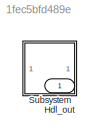
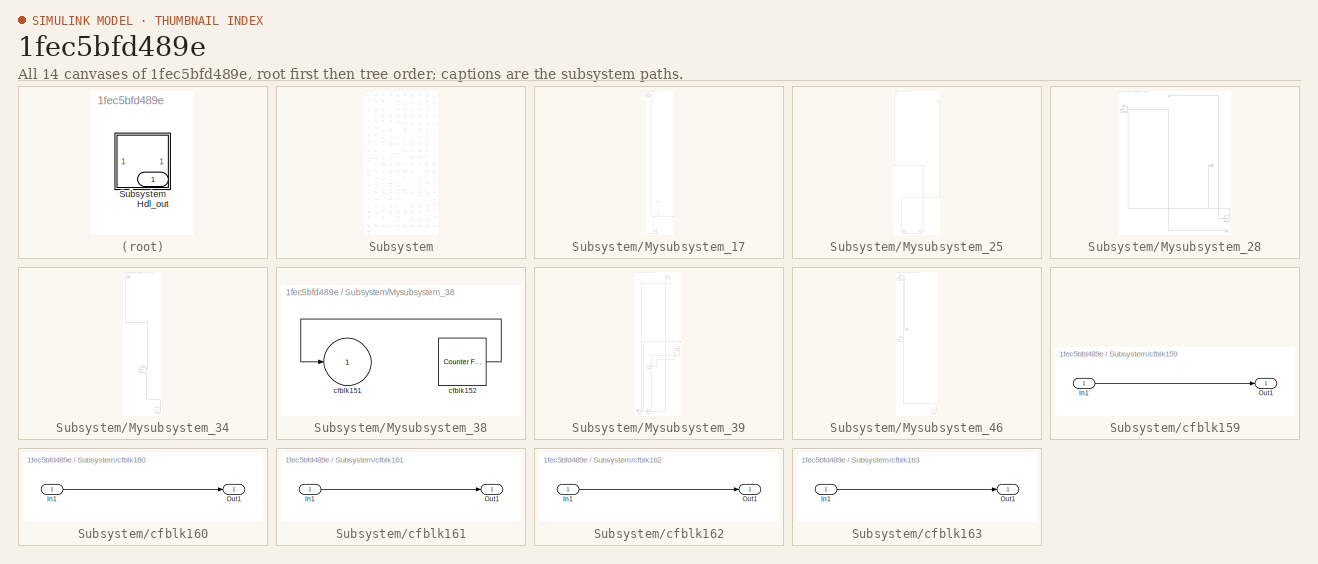
[diagram: thumbnail index - all 14 canvases of the model, root first then tree order]
MODEL slx_1fec5bfd489e
KIND model
CONFIG AbsTol = auto
CONFIG EnableMultiTasking = off
CONFIG FixedStep = auto
CONFIG MaxStep = auto
CONFIG MinStep = auto
CONFIG RelTol = 1e-3
CONFIG SampleTimeConstraint = Unconstrained
CONFIG SolverName = VariableStepAuto
CONFIG StartTime = 0.0
CONFIG StopTime = 10.0
BLOCK [Outport] Hdl_out
  OutDataTypeStr = uint8
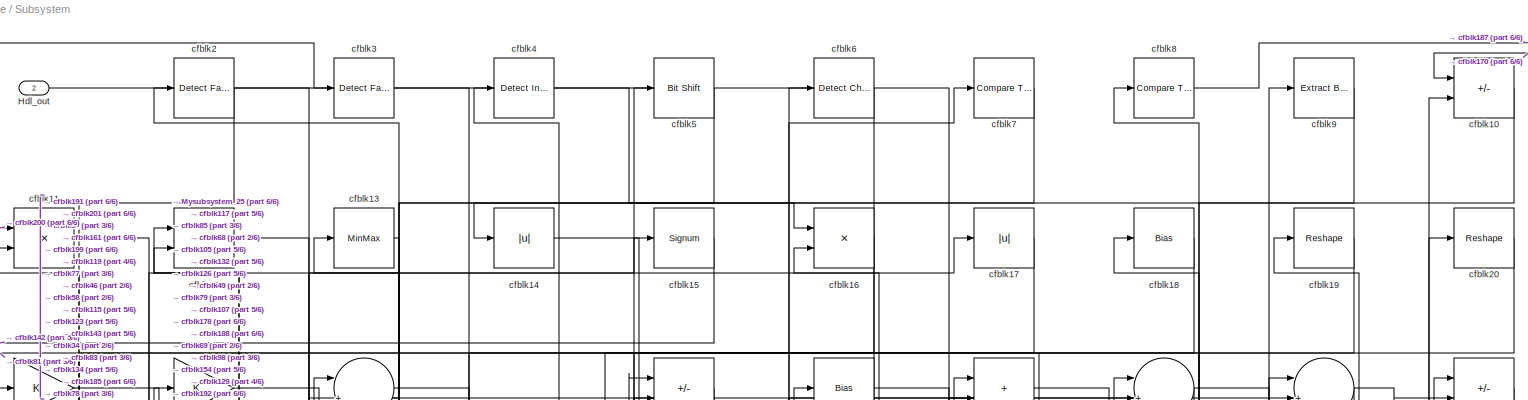
[diagram: Subsystem - part 1/6, full width, top band]
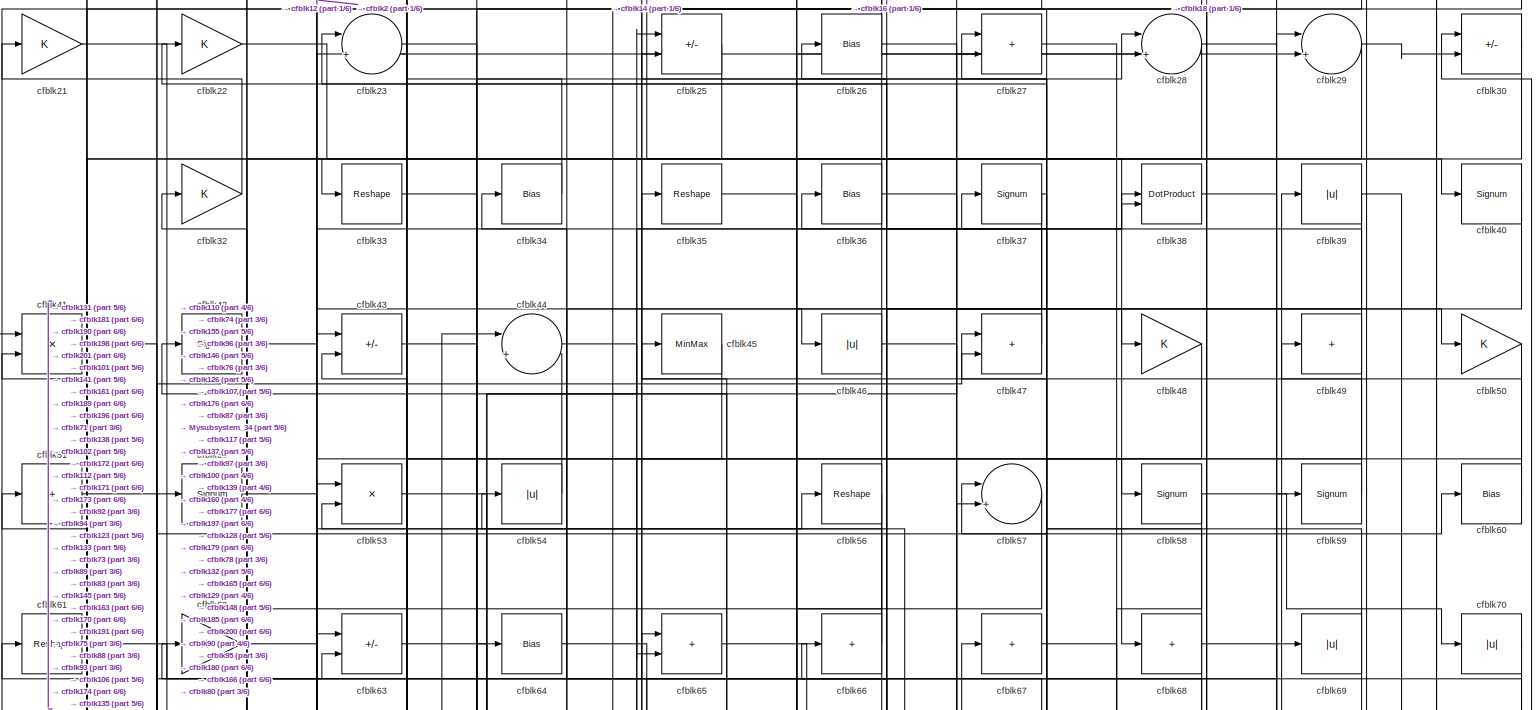
[diagram: Subsystem - part 2/6, full width, top band]
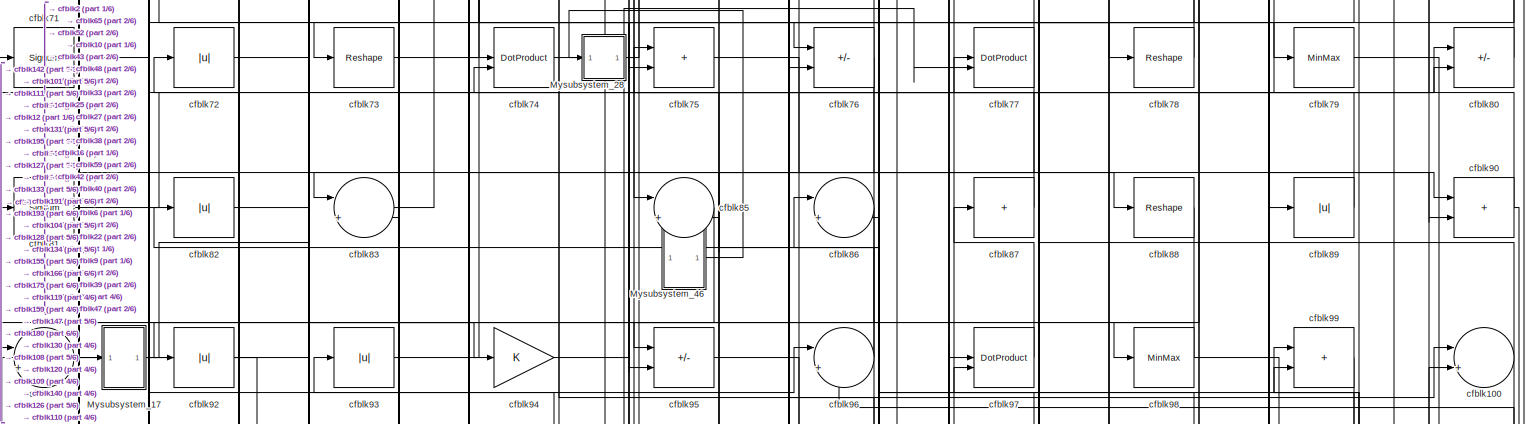
[diagram: Subsystem - part 3/6, full width, middle band]
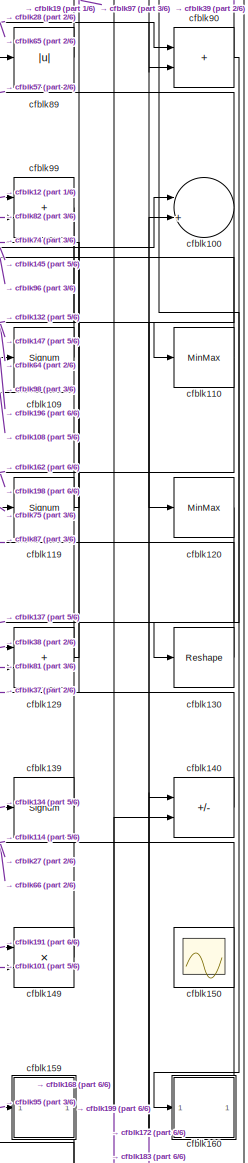
[diagram: Subsystem - part 4/6, middle right region]
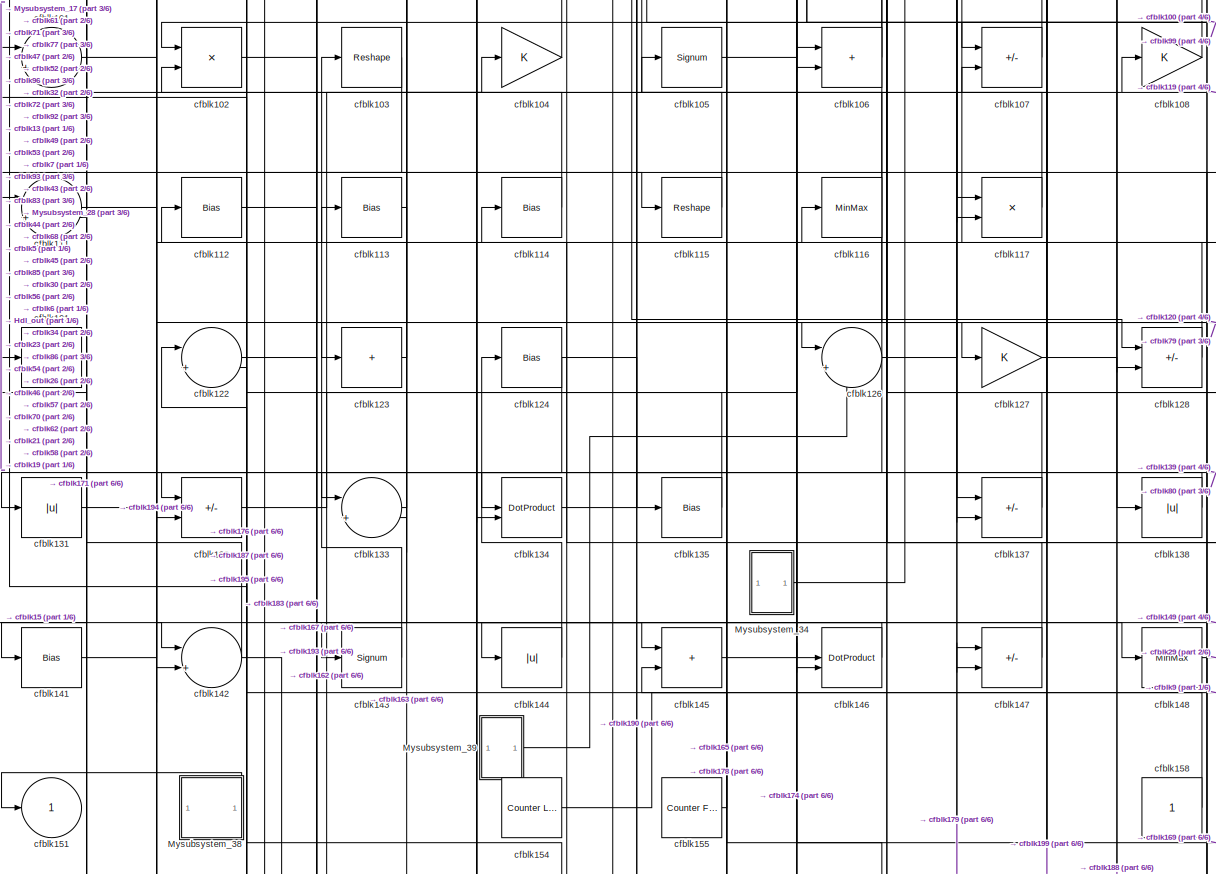
[diagram: Subsystem - part 5/6, full width, middle band]
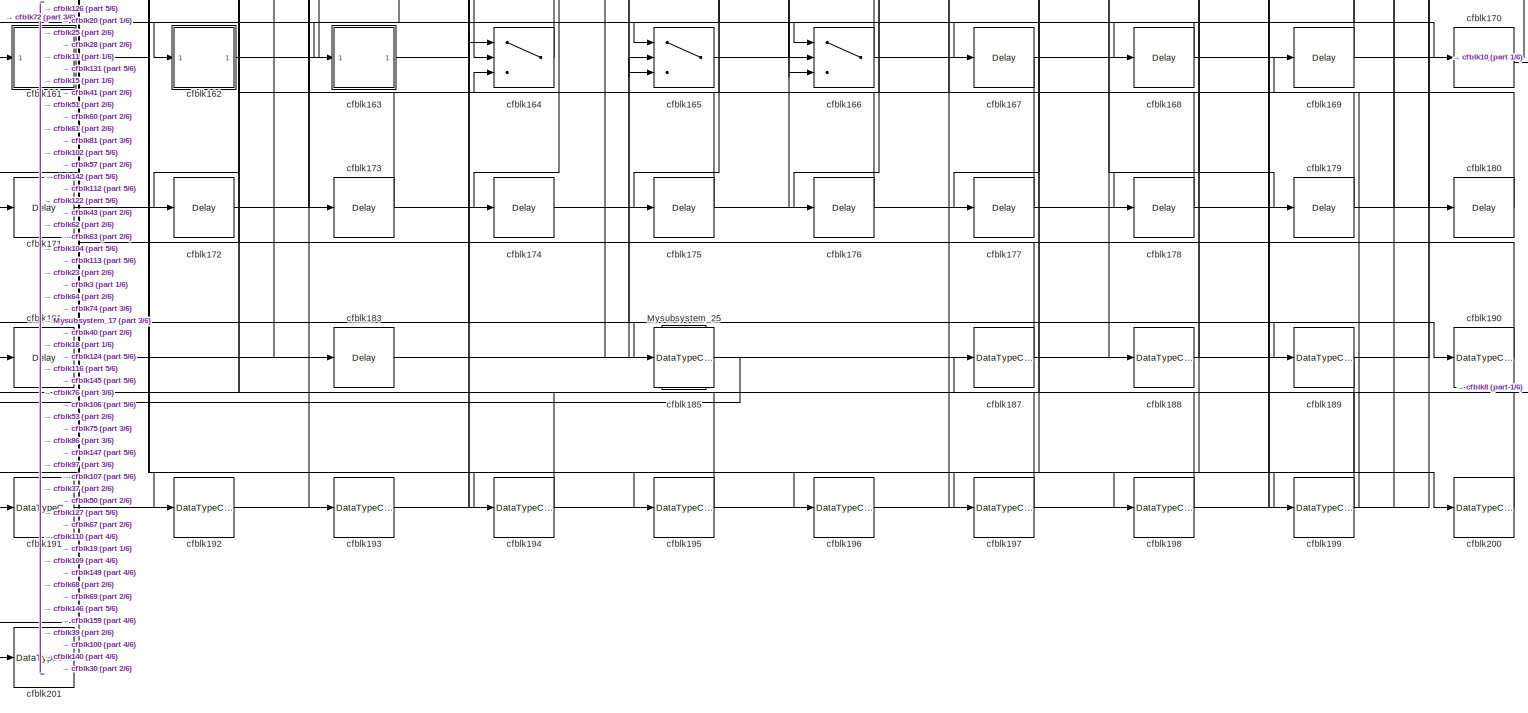
[diagram: Subsystem - part 6/6, full width, bottom band]
BLOCK [SubSystem] Subsystem
BLOCK [Outport] Subsystem/Hdl_out
  OutDataTypeStr = uint8
  Port = 2
BLOCK [SubSystem] Subsystem/Mysubsystem_17
  RTWFcnName = Mysubsystem_17
  RTWFcnNameOpts = User specified
  RTWFileNameOpts = Use function name
  RTWSystemCode = Reusable function
  TreatAsAtomicUnit = on
BLOCK [Inport] Subsystem/Mysubsystem_17/In1
BLOCK [Outport] Subsystem/Mysubsystem_17/Y
BLOCK [Reference] Subsystem/Mysubsystem_17/cfblk1  REF=simulink/Logic and Bit
Operations/Detect
Increase
  LibrarySourceBlock = hdlsllib/Logic and Bit\nOperations/Detect\nIncrease
  SourceBlock = simulink/Logic and Bit\nOperations/Detect\nIncrease
  SourceType = Detect Increase
BLOCK [Delay] Subsystem/Mysubsystem_17/cfblk182
  InputPortMap = u0
  SampleTime = 1
BLOCK [SubSystem] Subsystem/Mysubsystem_25
  RTWFcnName = Mysubsystem_25
  RTWFcnNameOpts = User specified
  RTWFileNameOpts = Use function name
  RTWSystemCode = Reusable function
  TreatAsAtomicUnit = on
BLOCK [Inport] Subsystem/Mysubsystem_25/In1
BLOCK [Outport] Subsystem/Mysubsystem_25/Out1
BLOCK [Delay] Subsystem/Mysubsystem_25/cfblk184
  InputPortMap = u0
  SampleTime = 1
BLOCK [DataTypeConversion] Subsystem/Mysubsystem_25/cfblk186
  OutDataTypeStr = uint8
  RndMeth = Floor
  SaturateOnIntegerOverflow = off
BLOCK [SubSystem] Subsystem/Mysubsystem_28
  RTWFcnName = Mysubsystem_28
  RTWFcnNameOpts = User specified
  RTWFileNameOpts = Use function name
  RTWSystemCode = Reusable function
  TreatAsAtomicUnit = on
BLOCK [Inport] Subsystem/Mysubsystem_28/In1
BLOCK [Outport] Subsystem/Mysubsystem_28/Out1
BLOCK [Outport] Subsystem/Mysubsystem_28/Out2
  Port = 2
BLOCK [Bias] Subsystem/Mysubsystem_28/cfblk118
  Bias = 0.0
  SaturateOnIntegerOverflow = off
BLOCK [Abs] Subsystem/Mysubsystem_28/cfblk31
  SaturateOnIntegerOverflow = off
BLOCK [SubSystem] Subsystem/Mysubsystem_34
  RTWFcnName = Mysubsystem_34
  RTWFcnNameOpts = User specified
  RTWFileNameOpts = Use function name
  RTWSystemCode = Reusable function
  TreatAsAtomicUnit = on
BLOCK [Outport] Subsystem/Mysubsystem_34/Out1
BLOCK [Abs] Subsystem/Mysubsystem_34/cfblk125
  SaturateOnIntegerOverflow = off
BLOCK [Ground] Subsystem/Mysubsystem_34/cfblk156
BLOCK [SubSystem] Subsystem/Mysubsystem_38
  RTWFcnName = Mysubsystem_38
  RTWFcnNameOpts = User specified
  RTWFileNameOpts = Use function name
  RTWSystemCode = Reusable function
  TreatAsAtomicUnit = on
BLOCK [Outport] Subsystem/Mysubsystem_38/cfblk151
  VectorParamsAs1DForOutWhenUnconnected = off
BLOCK [Reference] Subsystem/Mysubsystem_38/cfblk152  REF=hdlsllib/Sources/Counter
Free-Running
  SourceBlock = hdlsllib/Sources/Counter\nFree-Running
  SourceType = Counter Free-Running
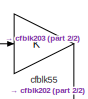
[diagram: Subsystem/Mysubsystem_39 - part 1/2, top right region]
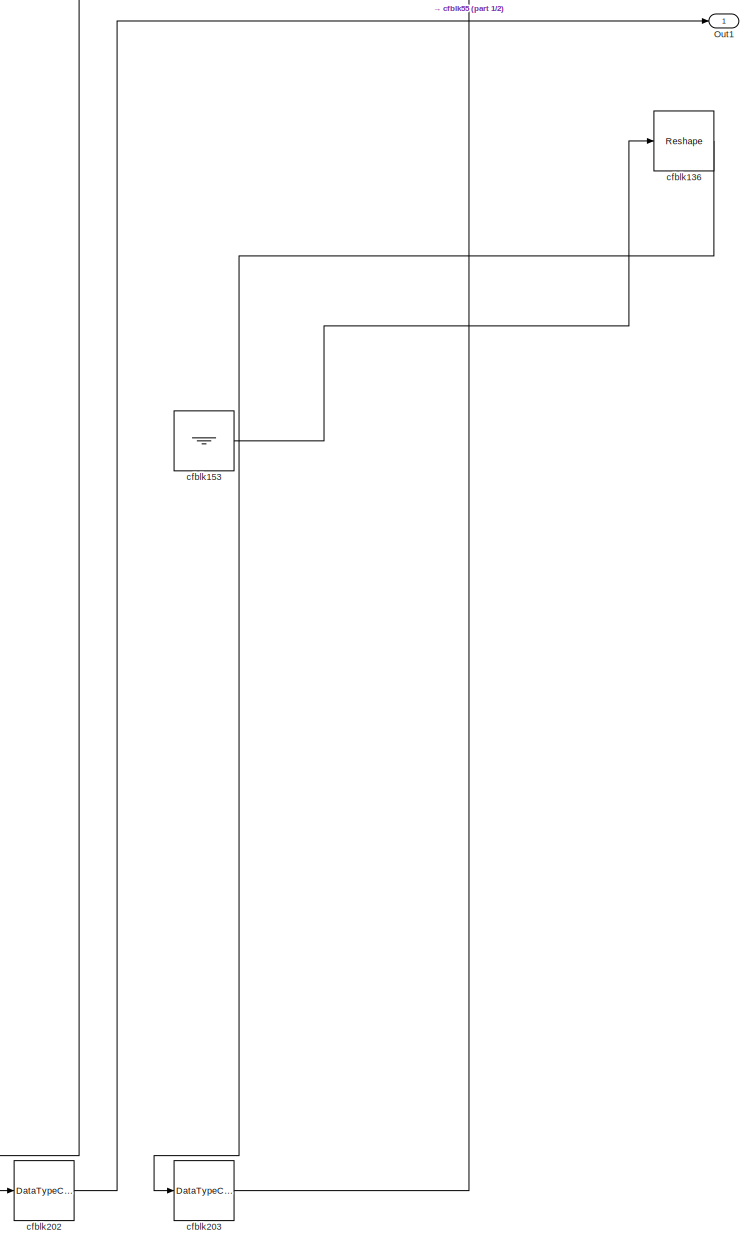
[diagram: Subsystem/Mysubsystem_39 - part 2/2, full width, bottom band]
BLOCK [SubSystem] Subsystem/Mysubsystem_39
  RTWFcnName = Mysubsystem_39
  RTWFcnNameOpts = User specified
  RTWFileNameOpts = Use function name
  RTWSystemCode = Reusable function
  TreatAsAtomicUnit = on
BLOCK [Outport] Subsystem/Mysubsystem_39/Out1
BLOCK [Reshape] Subsystem/Mysubsystem_39/cfblk136
BLOCK [Ground] Subsystem/Mysubsystem_39/cfblk153
BLOCK [DataTypeConversion] Subsystem/Mysubsystem_39/cfblk202
  OutDataTypeStr = uint8
  RndMeth = Floor
  SaturateOnIntegerOverflow = off
BLOCK [DataTypeConversion] Subsystem/Mysubsystem_39/cfblk203
  OutDataTypeStr = uint8
  RndMeth = Floor
  SaturateOnIntegerOverflow = off
BLOCK [Gain] Subsystem/Mysubsystem_39/cfblk55
BLOCK [SubSystem] Subsystem/Mysubsystem_46
  RTWFcnName = Mysubsystem_46
  RTWFcnNameOpts = User specified
  RTWFileNameOpts = Use function name
  RTWSystemCode = Reusable function
  TreatAsAtomicUnit = on
BLOCK [Outport] Subsystem/Mysubsystem_46/Out1
BLOCK [Ground] Subsystem/Mysubsystem_46/cfblk157
BLOCK [Abs] Subsystem/Mysubsystem_46/cfblk24
  SaturateOnIntegerOverflow = off
BLOCK [Abs] Subsystem/Mysubsystem_46/cfblk84
  SaturateOnIntegerOverflow = off
BLOCK [Sum] Subsystem/cfblk10
  IconShape = rectangular
  Inputs = +-
  OutDataTypeStr = uint8
BLOCK [Sum] Subsystem/cfblk100
  Inputs = |++
  OutDataTypeStr = uint8
BLOCK [Sum] Subsystem/cfblk101
  Inputs = |++
  OutDataTypeStr = uint8
BLOCK [Product] Subsystem/cfblk102
  Inputs = */
  OutDataTypeStr = uint8
  RndMeth = Zero
  SaturateOnIntegerOverflow = on
BLOCK [Reshape] Subsystem/cfblk103
BLOCK [Gain] Subsystem/cfblk104
  OutDataTypeStr = uint8
BLOCK [Signum] Subsystem/cfblk105
BLOCK [Sum] Subsystem/cfblk106
  IconShape = rectangular
  OutDataTypeStr = uint8
BLOCK [Sum] Subsystem/cfblk107
  IconShape = rectangular
  Inputs = +-
  OutDataTypeStr = uint8
BLOCK [Gain] Subsystem/cfblk108
  OutDataTypeStr = uint8
BLOCK [Signum] Subsystem/cfblk109
BLOCK [Product] Subsystem/cfblk11
  Inputs = */
  OutDataTypeStr = uint8
  RndMeth = Zero
  SaturateOnIntegerOverflow = on
BLOCK [MinMax] Subsystem/cfblk110
  OutDataTypeStr = uint8
BLOCK [Sum] Subsystem/cfblk111
  Inputs = |++
  OutDataTypeStr = uint8
BLOCK [Bias] Subsystem/cfblk112
  Bias = 0.0
  SaturateOnIntegerOverflow = off
BLOCK [Bias] Subsystem/cfblk113
  Bias = 0.0
  SaturateOnIntegerOverflow = off
BLOCK [Bias] Subsystem/cfblk114
  Bias = 0.0
  SaturateOnIntegerOverflow = off
BLOCK [Reshape] Subsystem/cfblk115
BLOCK [MinMax] Subsystem/cfblk116
  OutDataTypeStr = uint8
BLOCK [Product] Subsystem/cfblk117
  Inputs = */
  OutDataTypeStr = uint8
  RndMeth = Zero
  SaturateOnIntegerOverflow = on
BLOCK [Signum] Subsystem/cfblk119
BLOCK [Product] Subsystem/cfblk12
  Inputs = */
  OutDataTypeStr = uint8
  RndMeth = Zero
  SaturateOnIntegerOverflow = on
BLOCK [MinMax] Subsystem/cfblk120
  OutDataTypeStr = uint8
BLOCK [Sum] Subsystem/cfblk121
  IconShape = rectangular
  Inputs = +
  OutDataTypeStr = uint8
BLOCK [Sum] Subsystem/cfblk122
  Inputs = |++
  OutDataTypeStr = uint8
BLOCK [Sum] Subsystem/cfblk123
  IconShape = rectangular
  Inputs = +
  OutDataTypeStr = uint8
BLOCK [Bias] Subsystem/cfblk124
  Bias = 0.0
  SaturateOnIntegerOverflow = off
BLOCK [Sum] Subsystem/cfblk126
  Inputs = |++
  OutDataTypeStr = uint8
BLOCK [Gain] Subsystem/cfblk127
  OutDataTypeStr = uint8
BLOCK [Sum] Subsystem/cfblk128
  IconShape = rectangular
  Inputs = +-
  OutDataTypeStr = uint8
BLOCK [Sum] Subsystem/cfblk129
  IconShape = rectangular
  OutDataTypeStr = uint8
BLOCK [MinMax] Subsystem/cfblk13
  OutDataTypeStr = uint8
BLOCK [Reshape] Subsystem/cfblk130
BLOCK [Abs] Subsystem/cfblk131
  OutDataTypeStr = uint8
  SaturateOnIntegerOverflow = off
BLOCK [Sum] Subsystem/cfblk132
  IconShape = rectangular
  Inputs = +-
  OutDataTypeStr = uint8
BLOCK [Sum] Subsystem/cfblk133
  Inputs = |++
  OutDataTypeStr = uint8
BLOCK [DotProduct] Subsystem/cfblk134
  OutDataTypeStr = uint8
BLOCK [Bias] Subsystem/cfblk135
  Bias = 0.0
  SaturateOnIntegerOverflow = off
BLOCK [Sum] Subsystem/cfblk137
  IconShape = rectangular
  Inputs = +-
  OutDataTypeStr = uint8
BLOCK [Abs] Subsystem/cfblk138
  OutDataTypeStr = uint8
  SaturateOnIntegerOverflow = off
BLOCK [Signum] Subsystem/cfblk139
BLOCK [Abs] Subsystem/cfblk14
  OutDataTypeStr = uint8
  SaturateOnIntegerOverflow = off
BLOCK [Sum] Subsystem/cfblk140
  IconShape = rectangular
  Inputs = +-
  OutDataTypeStr = uint8
BLOCK [Bias] Subsystem/cfblk141
  Bias = 0.0
  SaturateOnIntegerOverflow = off
BLOCK [Sum] Subsystem/cfblk142
  Inputs = |++
  OutDataTypeStr = uint8
BLOCK [Signum] Subsystem/cfblk143
BLOCK [Abs] Subsystem/cfblk144
  OutDataTypeStr = uint8
  SaturateOnIntegerOverflow = off
BLOCK [Sum] Subsystem/cfblk145
  IconShape = rectangular
  OutDataTypeStr = uint8
BLOCK [DotProduct] Subsystem/cfblk146
  OutDataTypeStr = uint8
BLOCK [Sum] Subsystem/cfblk147
  IconShape = rectangular
  Inputs = +-
  OutDataTypeStr = uint8
BLOCK [MinMax] Subsystem/cfblk148
  OutDataTypeStr = uint8
BLOCK [Product] Subsystem/cfblk149
  Inputs = */
  OutDataTypeStr = uint8
  RndMeth = Zero
  SaturateOnIntegerOverflow = on
BLOCK [Signum] Subsystem/cfblk15
BLOCK [Scope] Subsystem/cfblk150
  Floating = on
  NumInputPorts = 1
  ScopeSpecificationString = Simulink.scopes.TimeScopeBlockCfg('CurrentConfiguration', extmgr.ConfigurationSet(extmgr.Configuration('Core','General UI',true,'FigureColor',[0.156862745098039 0.156862745098039 0.156862745098039]),extmgr.Configuration('Core','Source UI',true),extmgr.Configuration('Sources','WiredSimulink',true,'DataLoggingSaveFormat','StructureWithTime','DataLoggingLimitDataPoints',true,'DataLoggingDecimation','...<+2674ch>
BLOCK [Outport] Subsystem/cfblk151
  OutDataTypeStr = uint8
  VectorParamsAs1DForOutWhenUnconnected = off
BLOCK [Reference] Subsystem/cfblk154  REF=hdlsllib/Sources/Counter
Limited
  SourceBlock = hdlsllib/Sources/Counter\nLimited
  SourceType = Counter Limited
BLOCK [Reference] Subsystem/cfblk155  REF=hdlsllib/Sources/Counter
Free-Running
  SourceBlock = hdlsllib/Sources/Counter\nFree-Running
  SourceType = Counter Free-Running
BLOCK [Constant] Subsystem/cfblk158
  OutDataTypeStr = uint8
  SampleTime = -1
BLOCK [SubSystem] Subsystem/cfblk159
  LibrarySourceBlock = hdlsllib/Ports &\nSubsystems/Subsystem
BLOCK [Inport] Subsystem/cfblk159/In1
BLOCK [Outport] Subsystem/cfblk159/Out1
BLOCK [Product] Subsystem/cfblk16
  Inputs = */
  OutDataTypeStr = uint8
  RndMeth = Zero
  SaturateOnIntegerOverflow = on
BLOCK [SubSystem] Subsystem/cfblk160
  LibrarySourceBlock = hdlsllib/Ports &\nSubsystems/Subsystem
BLOCK [Inport] Subsystem/cfblk160/In1
BLOCK [Outport] Subsystem/cfblk160/Out1
BLOCK [SubSystem] Subsystem/cfblk161
  LibrarySourceBlock = hdlsllib/Ports &\nSubsystems/Subsystem
BLOCK [Inport] Subsystem/cfblk161/In1
BLOCK [Outport] Subsystem/cfblk161/Out1
BLOCK [SubSystem] Subsystem/cfblk162
  LibrarySourceBlock = hdlsllib/Ports &\nSubsystems/Subsystem
BLOCK [Inport] Subsystem/cfblk162/In1
BLOCK [Outport] Subsystem/cfblk162/Out1
BLOCK [SubSystem] Subsystem/cfblk163
  LibrarySourceBlock = hdlsllib/Ports &\nSubsystems/Subsystem
BLOCK [Inport] Subsystem/cfblk163/In1
BLOCK [Outport] Subsystem/cfblk163/Out1
BLOCK [Switch] Subsystem/cfblk164
  InputSameDT = off
  OutDataTypeStr = uint8
  SaturateOnIntegerOverflow = off
BLOCK [Switch] Subsystem/cfblk165
  InputSameDT = off
  OutDataTypeStr = uint8
  SaturateOnIntegerOverflow = off
BLOCK [Switch] Subsystem/cfblk166
  InputSameDT = off
  OutDataTypeStr = uint8
  SaturateOnIntegerOverflow = off
BLOCK [Delay] Subsystem/cfblk167
  InputPortMap = u0
  SampleTime = 1
BLOCK [Delay] Subsystem/cfblk168
  InputPortMap = u0
  SampleTime = 1
BLOCK [Delay] Subsystem/cfblk169
  InputPortMap = u0
  SampleTime = 1
BLOCK [Abs] Subsystem/cfblk17
  OutDataTypeStr = uint8
  SaturateOnIntegerOverflow = off
BLOCK [Delay] Subsystem/cfblk170
  InputPortMap = u0
  SampleTime = 1
BLOCK [Delay] Subsystem/cfblk171
  InputPortMap = u0
  SampleTime = 1
BLOCK [Delay] Subsystem/cfblk172
  InputPortMap = u0
  SampleTime = 1
BLOCK [Delay] Subsystem/cfblk173
  InputPortMap = u0
  SampleTime = 1
BLOCK [Delay] Subsystem/cfblk174
  InputPortMap = u0
  SampleTime = 1
BLOCK [Delay] Subsystem/cfblk175
  InputPortMap = u0
  SampleTime = 1
BLOCK [Delay] Subsystem/cfblk176
  InputPortMap = u0
  SampleTime = 1
BLOCK [Delay] Subsystem/cfblk177
  InputPortMap = u0
  SampleTime = 1
BLOCK [Delay] Subsystem/cfblk178
  InputPortMap = u0
  SampleTime = 1
BLOCK [Delay] Subsystem/cfblk179
  InputPortMap = u0
  SampleTime = 1
BLOCK [Bias] Subsystem/cfblk18
  Bias = 0.0
  SaturateOnIntegerOverflow = off
BLOCK [Delay] Subsystem/cfblk180
  InputPortMap = u0
  SampleTime = 1
BLOCK [Delay] Subsystem/cfblk181
  InputPortMap = u0
  SampleTime = 1
BLOCK [Delay] Subsystem/cfblk183
  InputPortMap = u0
  SampleTime = 1
BLOCK [DataTypeConversion] Subsystem/cfblk185
  OutDataTypeStr = uint8
  RndMeth = Floor
  SaturateOnIntegerOverflow = off
BLOCK [DataTypeConversion] Subsystem/cfblk187
  OutDataTypeStr = uint8
  RndMeth = Floor
  SaturateOnIntegerOverflow = off
BLOCK [DataTypeConversion] Subsystem/cfblk188
  OutDataTypeStr = uint8
  RndMeth = Floor
  SaturateOnIntegerOverflow = off
BLOCK [DataTypeConversion] Subsystem/cfblk189
  OutDataTypeStr = uint8
  RndMeth = Floor
  SaturateOnIntegerOverflow = off
BLOCK [Reshape] Subsystem/cfblk19
BLOCK [DataTypeConversion] Subsystem/cfblk190
  OutDataTypeStr = uint8
  RndMeth = Floor
  SaturateOnIntegerOverflow = off
BLOCK [DataTypeConversion] Subsystem/cfblk191
  OutDataTypeStr = uint8
  RndMeth = Floor
  SaturateOnIntegerOverflow = off
BLOCK [DataTypeConversion] Subsystem/cfblk192
  OutDataTypeStr = uint8
  RndMeth = Floor
  SaturateOnIntegerOverflow = off
BLOCK [DataTypeConversion] Subsystem/cfblk193
  OutDataTypeStr = uint8
  RndMeth = Floor
  SaturateOnIntegerOverflow = off
BLOCK [DataTypeConversion] Subsystem/cfblk194
  OutDataTypeStr = uint8
  RndMeth = Floor
  SaturateOnIntegerOverflow = off
BLOCK [DataTypeConversion] Subsystem/cfblk195
  OutDataTypeStr = uint8
  RndMeth = Floor
  SaturateOnIntegerOverflow = off
BLOCK [DataTypeConversion] Subsystem/cfblk196
  OutDataTypeStr = uint8
  RndMeth = Floor
  SaturateOnIntegerOverflow = off
BLOCK [DataTypeConversion] Subsystem/cfblk197
  OutDataTypeStr = uint8
  RndMeth = Floor
  SaturateOnIntegerOverflow = off
BLOCK [DataTypeConversion] Subsystem/cfblk198
  OutDataTypeStr = uint8
  RndMeth = Floor
  SaturateOnIntegerOverflow = off
BLOCK [DataTypeConversion] Subsystem/cfblk199
  OutDataTypeStr = uint8
  RndMeth = Floor
  SaturateOnIntegerOverflow = off
BLOCK [Reference] Subsystem/cfblk2  REF=hdlsllib/Logic and Bit
Operations/Detect Fall
Negative
  SourceBlock = hdlsllib/Logic and Bit\nOperations/Detect Fall\nNegative
  SourceType = Detect Fall Negative
BLOCK [Reshape] Subsystem/cfblk20
BLOCK [DataTypeConversion] Subsystem/cfblk200
  OutDataTypeStr = uint8
  RndMeth = Floor
  SaturateOnIntegerOverflow = off
BLOCK [DataTypeConversion] Subsystem/cfblk201
  OutDataTypeStr = uint8
  RndMeth = Floor
  SaturateOnIntegerOverflow = off
BLOCK [Gain] Subsystem/cfblk21
  OutDataTypeStr = uint8
BLOCK [Gain] Subsystem/cfblk22
  OutDataTypeStr = uint8
BLOCK [Sum] Subsystem/cfblk23
  Inputs = |++
  OutDataTypeStr = uint8
BLOCK [Sum] Subsystem/cfblk25
  IconShape = rectangular
  Inputs = +-
  OutDataTypeStr = uint8
BLOCK [Bias] Subsystem/cfblk26
  Bias = 0.0
  SaturateOnIntegerOverflow = off
BLOCK [Sum] Subsystem/cfblk27
  IconShape = rectangular
  OutDataTypeStr = uint8
BLOCK [Sum] Subsystem/cfblk28
  Inputs = |++
  OutDataTypeStr = uint8
BLOCK [Sum] Subsystem/cfblk29
  Inputs = |++
  OutDataTypeStr = uint8
BLOCK [Reference] Subsystem/cfblk3  REF=hdlsllib/Logic and Bit
Operations/Detect Fall
Nonpositive
  SourceBlock = hdlsllib/Logic and Bit\nOperations/Detect Fall\nNonpositive
  SourceType = Detect Fall Nonpositive
BLOCK [Sum] Subsystem/cfblk30
  IconShape = rectangular
  Inputs = +-
  OutDataTypeStr = uint8
BLOCK [Gain] Subsystem/cfblk32
  OutDataTypeStr = uint8
BLOCK [Reshape] Subsystem/cfblk33
BLOCK [Bias] Subsystem/cfblk34
  Bias = 0.0
  SaturateOnIntegerOverflow = off
BLOCK [Reshape] Subsystem/cfblk35
BLOCK [Bias] Subsystem/cfblk36
  Bias = 0.0
  SaturateOnIntegerOverflow = off
BLOCK [Signum] Subsystem/cfblk37
BLOCK [DotProduct] Subsystem/cfblk38
  OutDataTypeStr = uint8
BLOCK [Abs] Subsystem/cfblk39
  OutDataTypeStr = uint8
  SaturateOnIntegerOverflow = off
BLOCK [Reference] Subsystem/cfblk4  REF=simulink/Logic and Bit
Operations/Detect
Increase
  LibrarySourceBlock = hdlsllib/Logic and Bit\nOperations/Detect\nIncrease
  SourceBlock = simulink/Logic and Bit\nOperations/Detect\nIncrease
  SourceType = Detect Increase
BLOCK [Signum] Subsystem/cfblk40
BLOCK [Product] Subsystem/cfblk41
  Inputs = */
  OutDataTypeStr = uint8
  RndMeth = Zero
  SaturateOnIntegerOverflow = on
BLOCK [Signum] Subsystem/cfblk42
BLOCK [Sum] Subsystem/cfblk43
  IconShape = rectangular
  Inputs = +-
  OutDataTypeStr = uint8
BLOCK [Sum] Subsystem/cfblk44
  Inputs = |++
  OutDataTypeStr = uint8
BLOCK [MinMax] Subsystem/cfblk45
  OutDataTypeStr = uint8
BLOCK [Abs] Subsystem/cfblk46
  OutDataTypeStr = uint8
  SaturateOnIntegerOverflow = off
BLOCK [Sum] Subsystem/cfblk47
  IconShape = rectangular
  OutDataTypeStr = uint8
BLOCK [Gain] Subsystem/cfblk48
  OutDataTypeStr = uint8
BLOCK [Sum] Subsystem/cfblk49
  IconShape = rectangular
  Inputs = +
  OutDataTypeStr = uint8
BLOCK [Reference] Subsystem/cfblk5  REF=hdlsllib/Logic and Bit
Operations/Bit Shift
  SourceBlock = hdlsllib/Logic and Bit\nOperations/Bit Shift
  SourceType = Bit Shift
BLOCK [Gain] Subsystem/cfblk50
  OutDataTypeStr = uint8
BLOCK [Sum] Subsystem/cfblk51
  IconShape = rectangular
  Inputs = +
  OutDataTypeStr = uint8
BLOCK [Signum] Subsystem/cfblk52
BLOCK [Product] Subsystem/cfblk53
  Inputs = */
  OutDataTypeStr = uint8
  RndMeth = Zero
  SaturateOnIntegerOverflow = on
BLOCK [Abs] Subsystem/cfblk54
  OutDataTypeStr = uint8
  SaturateOnIntegerOverflow = off
BLOCK [Reshape] Subsystem/cfblk56
BLOCK [Sum] Subsystem/cfblk57
  Inputs = |++
  OutDataTypeStr = uint8
BLOCK [Signum] Subsystem/cfblk58
BLOCK [Signum] Subsystem/cfblk59
BLOCK [Reference] Subsystem/cfblk6  REF=simulink/Logic and Bit
Operations/Detect
Change
  LibrarySourceBlock = hdlsllib/Logic and Bit\nOperations/Detect\nChange
  SourceBlock = simulink/Logic and Bit\nOperations/Detect\nChange
  SourceType = Detect Change
BLOCK [Bias] Subsystem/cfblk60
  Bias = 0.0
  SaturateOnIntegerOverflow = off
BLOCK [Reshape] Subsystem/cfblk61
BLOCK [Gain] Subsystem/cfblk62
  OutDataTypeStr = uint8
BLOCK [Sum] Subsystem/cfblk63
  IconShape = rectangular
  Inputs = +-
  OutDataTypeStr = uint8
BLOCK [Bias] Subsystem/cfblk64
  Bias = 0.0
  SaturateOnIntegerOverflow = off
BLOCK [Sum] Subsystem/cfblk65
  IconShape = rectangular
  OutDataTypeStr = uint8
BLOCK [Sum] Subsystem/cfblk66
  IconShape = rectangular
  Inputs = +
  OutDataTypeStr = uint8
BLOCK [Sum] Subsystem/cfblk67
  IconShape = rectangular
  Inputs = +
  OutDataTypeStr = uint8
BLOCK [Sum] Subsystem/cfblk68
  IconShape = rectangular
  Inputs = +
  OutDataTypeStr = uint8
BLOCK [Abs] Subsystem/cfblk69
  OutDataTypeStr = uint8
  SaturateOnIntegerOverflow = off
BLOCK [Reference] Subsystem/cfblk7  REF=hdlsllib/Logic and Bit
Operations/Compare
To Constant
  SourceBlock = hdlsllib/Logic and Bit\nOperations/Compare\nTo Constant
  SourceType = Compare To Constant
BLOCK [Abs] Subsystem/cfblk70
  OutDataTypeStr = uint8
  SaturateOnIntegerOverflow = off
BLOCK [Signum] Subsystem/cfblk71
BLOCK [Abs] Subsystem/cfblk72
  OutDataTypeStr = uint8
  SaturateOnIntegerOverflow = off
BLOCK [Reshape] Subsystem/cfblk73
BLOCK [DotProduct] Subsystem/cfblk74
  OutDataTypeStr = uint8
BLOCK [Sum] Subsystem/cfblk75
  IconShape = rectangular
  OutDataTypeStr = uint8
BLOCK [Sum] Subsystem/cfblk76
  IconShape = rectangular
  Inputs = +-
  OutDataTypeStr = uint8
BLOCK [DotProduct] Subsystem/cfblk77
  OutDataTypeStr = uint8
BLOCK [Reshape] Subsystem/cfblk78
BLOCK [MinMax] Subsystem/cfblk79
  OutDataTypeStr = uint8
BLOCK [Reference] Subsystem/cfblk8  REF=hdlsllib/Logic and Bit
Operations/Compare
To Zero
  SourceBlock = hdlsllib/Logic and Bit\nOperations/Compare\nTo Zero
  SourceType = Compare To Zero
BLOCK [Sum] Subsystem/cfblk80
  IconShape = rectangular
  Inputs = +-
  OutDataTypeStr = uint8
BLOCK [Signum] Subsystem/cfblk81
BLOCK [Abs] Subsystem/cfblk82
  OutDataTypeStr = uint8
  SaturateOnIntegerOverflow = off
BLOCK [Sum] Subsystem/cfblk83
  Inputs = |++
  OutDataTypeStr = uint8
BLOCK [Sum] Subsystem/cfblk85
  Inputs = |++
  OutDataTypeStr = uint8
BLOCK [Sum] Subsystem/cfblk86
  Inputs = |++
  OutDataTypeStr = uint8
BLOCK [Sum] Subsystem/cfblk87
  IconShape = rectangular
  Inputs = +
  OutDataTypeStr = uint8
BLOCK [Reshape] Subsystem/cfblk88
BLOCK [Abs] Subsystem/cfblk89
  OutDataTypeStr = uint8
  SaturateOnIntegerOverflow = off
BLOCK [Reference] Subsystem/cfblk9  REF=simulink/Logic and Bit
Operations/Extract Bits
  LibrarySourceBlock = hdlsllib/Logic and Bit\nOperations/Extract Bits
  SourceBlock = simulink/Logic and Bit\nOperations/Extract Bits
  SourceType = Extract Bits
BLOCK [Sum] Subsystem/cfblk90
  IconShape = rectangular
  OutDataTypeStr = uint8
BLOCK [Sum] Subsystem/cfblk91
  Inputs = |++
  OutDataTypeStr = uint8
BLOCK [Abs] Subsystem/cfblk92
  OutDataTypeStr = uint8
  SaturateOnIntegerOverflow = off
BLOCK [Abs] Subsystem/cfblk93
  OutDataTypeStr = uint8
  SaturateOnIntegerOverflow = off
BLOCK [Gain] Subsystem/cfblk94
  OutDataTypeStr = uint8
BLOCK [Sum] Subsystem/cfblk95
  IconShape = rectangular
  Inputs = +-
  OutDataTypeStr = uint8
BLOCK [Sum] Subsystem/cfblk96
  Inputs = |++
  OutDataTypeStr = uint8
BLOCK [DotProduct] Subsystem/cfblk97
  OutDataTypeStr = uint8
BLOCK [MinMax] Subsystem/cfblk98
  OutDataTypeStr = uint8
BLOCK [Sum] Subsystem/cfblk99
  IconShape = rectangular
  OutDataTypeStr = uint8
LINE Subsystem/Mysubsystem_17/In1:1 -> Subsystem/Mysubsystem_17/cfblk182:1
LINE Subsystem/Mysubsystem_17/cfblk182:1 -> Subsystem/Mysubsystem_17/cfblk1:1
LINE Subsystem/Mysubsystem_17/cfblk1:1 -> Subsystem/Mysubsystem_17/Y:1
LINE Subsystem/Mysubsystem_17:1 -> Subsystem/cfblk164:2
LINE Subsystem/Mysubsystem_25/In1:1 -> Subsystem/Mysubsystem_25/cfblk184:1
LINE Subsystem/Mysubsystem_25/cfblk184:1 -> Subsystem/Mysubsystem_25/cfblk186:1
LINE Subsystem/Mysubsystem_25/cfblk186:1 -> Subsystem/Mysubsystem_25/Out1:1
LINE Subsystem/Mysubsystem_25:1 -> Subsystem/cfblk3:1
LINE Subsystem/Mysubsystem_28/In1:1 -> Subsystem/Mysubsystem_28/cfblk118:1
NET Subsystem/Mysubsystem_28/cfblk118:1 -> Subsystem/Mysubsystem_28/Out1:1, Subsystem/Mysubsystem_28/cfblk31:1
LINE Subsystem/Mysubsystem_28/cfblk31:1 -> Subsystem/Mysubsystem_28/Out2:1
LINE Subsystem/Mysubsystem_28:1 -> Subsystem/cfblk77:2
LINE Subsystem/Mysubsystem_28:2 -> Subsystem/cfblk128:1
LINE Subsystem/Mysubsystem_34/cfblk125:1 -> Subsystem/Mysubsystem_34/Out1:1
LINE Subsystem/Mysubsystem_34/cfblk156:1 -> Subsystem/Mysubsystem_34/cfblk125:1
LINE Subsystem/Mysubsystem_34:1 -> Subsystem/cfblk54:1
LINE Subsystem/Mysubsystem_38/cfblk152:1 -> Subsystem/Mysubsystem_38/cfblk151:1
LINE Subsystem/Mysubsystem_38:1 -> Subsystem/cfblk151:1
LINE Subsystem/Mysubsystem_39/cfblk136:1 -> Subsystem/Mysubsystem_39/cfblk203:1
LINE Subsystem/Mysubsystem_39/cfblk153:1 -> Subsystem/Mysubsystem_39/cfblk136:1
LINE Subsystem/Mysubsystem_39/cfblk202:1 -> Subsystem/Mysubsystem_39/Out1:1
LINE Subsystem/Mysubsystem_39/cfblk203:1 -> Subsystem/Mysubsystem_39/cfblk55:1
LINE Subsystem/Mysubsystem_39/cfblk55:1 -> Subsystem/Mysubsystem_39/cfblk202:1
LINE Subsystem/Mysubsystem_39:1 -> Subsystem/cfblk126:2
LINE Subsystem/Mysubsystem_46/cfblk157:1 -> Subsystem/Mysubsystem_46/cfblk84:1
LINE Subsystem/Mysubsystem_46/cfblk24:1 -> Subsystem/Mysubsystem_46/Out1:1
LINE Subsystem/Mysubsystem_46/cfblk84:1 -> Subsystem/Mysubsystem_46/cfblk24:1
LINE Subsystem/Mysubsystem_46:1 -> Subsystem/Mysubsystem_28:1
NET Subsystem/cfblk100:1 -> Subsystem/cfblk147:2, Subsystem/cfblk57:1
NET Subsystem/cfblk101:1 -> Subsystem/cfblk149:2, Subsystem/cfblk52:1
LINE Subsystem/cfblk102:1 -> Subsystem/cfblk115:1
LINE Subsystem/cfblk103:1 -> Subsystem/cfblk111:1
LINE Subsystem/cfblk104:1 -> Subsystem/cfblk83:2
LINE Subsystem/cfblk105:1 -> Subsystem/cfblk7:1
LINE Subsystem/cfblk106:1 -> Subsystem/cfblk34:1
LINE Subsystem/cfblk107:1 -> Subsystem/cfblk62:1
LINE Subsystem/cfblk108:1 -> Subsystem/cfblk77:1
LINE Subsystem/cfblk109:1 -> Subsystem/cfblk74:2
LINE Subsystem/cfblk10:1 -> Subsystem/cfblk83:1
NET Subsystem/cfblk110:1 -> Subsystem/cfblk162:1, Subsystem/cfblk198:1, Subsystem/cfblk96:2
LINE Subsystem/cfblk111:1 -> Subsystem/cfblk142:2
NET Subsystem/cfblk112:1 -> Subsystem/cfblk167:1, Subsystem/cfblk56:1
LINE Subsystem/cfblk113:1 -> Subsystem/cfblk163:1
LINE Subsystem/cfblk114:1 -> Subsystem/cfblk71:1
LINE Subsystem/cfblk115:1 -> Subsystem/cfblk13:1
NET Subsystem/cfblk116:1 -> Subsystem/cfblk105:1, Subsystem/cfblk165:1
LINE Subsystem/cfblk117:1 -> Subsystem/cfblk5:1
NET Subsystem/cfblk119:1 -> Subsystem/cfblk108:1, Subsystem/cfblk12:1, Subsystem/cfblk99:1
LINE Subsystem/cfblk11:1 -> Subsystem/cfblk199:1
LINE Subsystem/cfblk120:1 -> Subsystem/cfblk137:2
LINE Subsystem/cfblk121:1 -> Subsystem/cfblk141:1
LINE Subsystem/cfblk122:1 -> Subsystem/cfblk193:1
LINE Subsystem/cfblk123:1 -> Subsystem/cfblk53:2
NET Subsystem/cfblk124:1 -> Subsystem/cfblk131:1, Subsystem/cfblk190:1
NET Subsystem/cfblk126:1 -> Subsystem/Hdl_out:1, Subsystem/cfblk171:1, Subsystem/cfblk57:2
LINE Subsystem/cfblk127:1 -> Subsystem/cfblk188:1
LINE Subsystem/cfblk128:1 -> Subsystem/cfblk113:1
NET Subsystem/cfblk129:1 -> Subsystem/cfblk19:1, Subsystem/cfblk97:2
LINE Subsystem/cfblk12:1 -> Subsystem/cfblk46:1
LINE Subsystem/cfblk130:1 -> Subsystem/cfblk87:1
NET Subsystem/cfblk131:1 -> Subsystem/cfblk116:1, Subsystem/cfblk194:1, Subsystem/cfblk61:1, Subsystem/cfblk80:2, Subsystem/cfblk96:1
LINE Subsystem/cfblk132:1 -> Subsystem/cfblk6:1
LINE Subsystem/cfblk133:1 -> Subsystem/cfblk93:1
NET Subsystem/cfblk134:1 -> Subsystem/cfblk139:1, Subsystem/cfblk80:1
NET Subsystem/cfblk135:1 -> Subsystem/cfblk134:1, Subsystem/cfblk32:1
LINE Subsystem/cfblk137:1 -> Subsystem/cfblk23:1
LINE Subsystem/cfblk138:1 -> Subsystem/cfblk133:1
LINE Subsystem/cfblk139:1 -> Subsystem/cfblk37:1
LINE Subsystem/cfblk13:1 -> Subsystem/cfblk123:1
NET Subsystem/cfblk140:1 -> Subsystem/cfblk82:1, Subsystem/cfblk99:2
LINE Subsystem/cfblk141:1 -> Subsystem/cfblk47:1
NET Subsystem/cfblk142:1 -> Subsystem/Mysubsystem_17:1, Subsystem/cfblk121:1, Subsystem/cfblk183:1
LINE Subsystem/cfblk143:1 -> Subsystem/cfblk103:1
LINE Subsystem/cfblk144:1 -> Subsystem/cfblk124:1
LINE Subsystem/cfblk145:1 -> Subsystem/cfblk100:1
LINE Subsystem/cfblk146:1 -> Subsystem/cfblk144:1
LINE Subsystem/cfblk147:1 -> Subsystem/cfblk86:1
LINE Subsystem/cfblk148:1 -> Subsystem/cfblk29:1
LINE Subsystem/cfblk149:1 -> Subsystem/cfblk114:1
LINE Subsystem/cfblk14:1 -> Subsystem/cfblk68:1
LINE Subsystem/cfblk154:1 -> Subsystem/cfblk9:1
NET Subsystem/cfblk155:1 -> Subsystem/cfblk45:1, Subsystem/cfblk85:2
LINE Subsystem/cfblk158:1 -> Subsystem/cfblk101:1
LINE Subsystem/cfblk159/In1:1 -> Subsystem/cfblk159/Out1:1
LINE Subsystem/cfblk159:1 -> Subsystem/cfblk168:1
LINE Subsystem/cfblk15:1 -> Subsystem/cfblk142:1
LINE Subsystem/cfblk160/In1:1 -> Subsystem/cfblk160/Out1:1
NET Subsystem/cfblk160:1 -> Subsystem/cfblk27:1, Subsystem/cfblk66:1
LINE Subsystem/cfblk161/In1:1 -> Subsystem/cfblk161/Out1:1
NET Subsystem/cfblk161:1 -> Subsystem/cfblk15:1, Subsystem/cfblk60:1
LINE Subsystem/cfblk162/In1:1 -> Subsystem/cfblk162/Out1:1
LINE Subsystem/cfblk162:1 -> Subsystem/cfblk104:1
LINE Subsystem/cfblk163/In1:1 -> Subsystem/cfblk163/Out1:1
LINE Subsystem/cfblk163:1 -> Subsystem/cfblk28:1
NET Subsystem/cfblk164:1 -> Subsystem/cfblk161:1, Subsystem/cfblk72:1
LINE Subsystem/cfblk165:1 -> Subsystem/cfblk28:2
NET Subsystem/cfblk166:1 -> Subsystem/cfblk30:1, Subsystem/cfblk75:1
LINE Subsystem/cfblk167:1 -> Subsystem/cfblk164:3
LINE Subsystem/cfblk168:1 -> Subsystem/cfblk166:1
LINE Subsystem/cfblk169:1 -> Subsystem/cfblk146:1
LINE Subsystem/cfblk16:1 -> Subsystem/cfblk85:1
LINE Subsystem/cfblk170:1 -> Subsystem/cfblk10:1
LINE Subsystem/cfblk171:1 -> Subsystem/cfblk43:1
LINE Subsystem/cfblk172:1 -> Subsystem/cfblk140:1
LINE Subsystem/cfblk173:1 -> Subsystem/cfblk63:1
LINE Subsystem/cfblk174:1 -> Subsystem/cfblk106:1
LINE Subsystem/cfblk175:1 -> Subsystem/cfblk164:1
LINE Subsystem/cfblk176:1 -> Subsystem/cfblk102:2
LINE Subsystem/cfblk177:1 -> Subsystem/cfblk53:1
LINE Subsystem/cfblk178:1 -> Subsystem/cfblk145:2
LINE Subsystem/cfblk179:1 -> Subsystem/cfblk147:1
LINE Subsystem/cfblk17:1 -> Subsystem/cfblk81:1
LINE Subsystem/cfblk180:1 -> Subsystem/cfblk86:2
LINE Subsystem/cfblk181:1 -> Subsystem/cfblk165:2
LINE Subsystem/cfblk183:1 -> Subsystem/cfblk100:2
LINE Subsystem/cfblk185:1 -> Subsystem/cfblk69:1
LINE Subsystem/cfblk187:1 -> Subsystem/cfblk112:1
LINE Subsystem/cfblk188:1 -> Subsystem/cfblk8:1
LINE Subsystem/cfblk189:1 -> Subsystem/cfblk192:1
LINE Subsystem/cfblk18:1 -> Subsystem/Mysubsystem_25:1
LINE Subsystem/cfblk190:1 -> Subsystem/cfblk51:1
NET Subsystem/cfblk191:1 -> Subsystem/cfblk149:1, Subsystem/cfblk64:1, Subsystem/cfblk97:1
LINE Subsystem/cfblk192:1 -> Subsystem/cfblk20:1
LINE Subsystem/cfblk193:1 -> Subsystem/cfblk74:1
LINE Subsystem/cfblk194:1 -> Subsystem/cfblk122:1
LINE Subsystem/cfblk195:1 -> Subsystem/cfblk122:2
LINE Subsystem/cfblk196:1 -> Subsystem/cfblk109:1
LINE Subsystem/cfblk197:1 -> Subsystem/cfblk41:1
LINE Subsystem/cfblk198:1 -> Subsystem/cfblk41:2
NET Subsystem/cfblk199:1 -> Subsystem/cfblk107:2, Subsystem/cfblk140:2, Subsystem/cfblk169:1
NET Subsystem/cfblk19:1 -> Subsystem/cfblk107:1, Subsystem/cfblk134:2, Subsystem/cfblk178:1
LINE Subsystem/cfblk200:1 -> Subsystem/cfblk11:1
LINE Subsystem/cfblk201:1 -> Subsystem/cfblk11:2
LINE Subsystem/cfblk20:1 -> Subsystem/cfblk191:1
LINE Subsystem/cfblk21:1 -> Subsystem/cfblk138:1
LINE Subsystem/cfblk22:1 -> Subsystem/cfblk78:1
LINE Subsystem/cfblk23:1 -> Subsystem/cfblk170:1
NET Subsystem/cfblk25:1 -> Subsystem/cfblk201:1, Subsystem/cfblk33:1
LINE Subsystem/cfblk26:1 -> Subsystem/cfblk137:1
LINE Subsystem/cfblk27:1 -> Subsystem/cfblk40:1
NET Subsystem/cfblk28:1 -> Subsystem/cfblk181:1, Subsystem/cfblk90:1
NET Subsystem/cfblk29:1 -> Subsystem/cfblk102:1, Subsystem/cfblk30:2
NET Subsystem/cfblk2:1 -> Subsystem/cfblk58:1, Subsystem/cfblk91:2
LINE Subsystem/cfblk30:1 -> Subsystem/cfblk106:2
LINE Subsystem/cfblk32:1 -> Subsystem/cfblk21:1
LINE Subsystem/cfblk33:1 -> Subsystem/cfblk88:1
LINE Subsystem/cfblk34:1 -> Subsystem/cfblk2:1
LINE Subsystem/cfblk35:1 -> Subsystem/cfblk50:1
LINE Subsystem/cfblk36:1 -> Subsystem/cfblk48:1
NET Subsystem/cfblk37:1 -> Subsystem/cfblk176:1, Subsystem/cfblk197:1
LINE Subsystem/cfblk38:1 -> Subsystem/cfblk129:1
NET Subsystem/cfblk39:1 -> Subsystem/cfblk180:1, Subsystem/cfblk76:1
LINE Subsystem/cfblk3:1 -> Subsystem/cfblk185:1
NET Subsystem/cfblk40:1 -> Subsystem/cfblk174:1, Subsystem/cfblk76:2
LINE Subsystem/cfblk41:1 -> Subsystem/cfblk196:1
LINE Subsystem/cfblk42:1 -> Subsystem/cfblk29:2
NET Subsystem/cfblk43:1 -> Subsystem/cfblk145:1, Subsystem/cfblk75:2
LINE Subsystem/cfblk44:1 -> Subsystem/cfblk135:1
LINE Subsystem/cfblk45:1 -> Subsystem/cfblk65:2
LINE Subsystem/cfblk46:1 -> Subsystem/cfblk117:1
LINE Subsystem/cfblk47:1 -> Subsystem/cfblk36:1
LINE Subsystem/cfblk48:1 -> Subsystem/cfblk73:1
NET Subsystem/cfblk49:1 -> Subsystem/cfblk133:2, Subsystem/cfblk16:2
LINE Subsystem/cfblk4:1 -> Subsystem/cfblk16:1
LINE Subsystem/cfblk50:1 -> Subsystem/cfblk177:1
LINE Subsystem/cfblk51:1 -> Subsystem/cfblk189:1
LINE Subsystem/cfblk52:1 -> Subsystem/cfblk94:1
LINE Subsystem/cfblk53:1 -> Subsystem/cfblk166:2
LINE Subsystem/cfblk54:1 -> Subsystem/cfblk44:2
LINE Subsystem/cfblk56:1 -> Subsystem/cfblk146:2
LINE Subsystem/cfblk57:1 -> Subsystem/cfblk172:1
NET Subsystem/cfblk58:1 -> Subsystem/cfblk128:2, Subsystem/cfblk70:1
LINE Subsystem/cfblk59:1 -> Subsystem/cfblk35:1
LINE Subsystem/cfblk5:1 -> Subsystem/cfblk14:1
LINE Subsystem/cfblk60:1 -> Subsystem/cfblk49:1
NET Subsystem/cfblk61:1 -> Subsystem/cfblk166:3, Subsystem/cfblk63:2
LINE Subsystem/cfblk62:1 -> Subsystem/cfblk173:1
LINE Subsystem/cfblk63:1 -> Subsystem/cfblk89:1
LINE Subsystem/cfblk64:1 -> Subsystem/cfblk110:1
LINE Subsystem/cfblk65:1 -> Subsystem/cfblk90:2
LINE Subsystem/cfblk66:1 -> Subsystem/cfblk23:2
LINE Subsystem/cfblk67:1 -> Subsystem/cfblk179:1
NET Subsystem/cfblk68:1 -> Subsystem/cfblk132:2, Subsystem/cfblk165:3, Subsystem/cfblk200:1, Subsystem/cfblk22:1
NET Subsystem/cfblk69:1 -> Subsystem/cfblk18:1, Subsystem/cfblk25:2, Subsystem/cfblk95:2
LINE Subsystem/cfblk6:1 -> Subsystem/cfblk79:1
LINE Subsystem/cfblk70:1 -> Subsystem/cfblk117:2
LINE Subsystem/cfblk71:1 -> Subsystem/cfblk65:1
LINE Subsystem/cfblk72:1 -> Subsystem/cfblk127:1
LINE Subsystem/cfblk73:1 -> Subsystem/cfblk27:2
LINE Subsystem/cfblk74:1 -> Subsystem/cfblk59:1
LINE Subsystem/cfblk75:1 -> Subsystem/cfblk119:1
LINE Subsystem/cfblk76:1 -> Subsystem/cfblk175:1
NET Subsystem/cfblk77:1 -> Subsystem/cfblk111:2, Subsystem/cfblk12:2
LINE Subsystem/cfblk78:1 -> Subsystem/cfblk4:1
LINE Subsystem/cfblk79:1 -> Subsystem/cfblk126:1
LINE Subsystem/cfblk7:1 -> Subsystem/cfblk143:1
LINE Subsystem/cfblk80:1 -> Subsystem/cfblk47:2
NET Subsystem/cfblk81:1 -> Subsystem/cfblk10:2, Subsystem/cfblk129:2, Subsystem/cfblk195:1
LINE Subsystem/cfblk82:1 -> Subsystem/cfblk130:1
LINE Subsystem/cfblk83:1 -> Subsystem/cfblk44:1
LINE Subsystem/cfblk85:1 -> Subsystem/cfblk101:2
LINE Subsystem/cfblk86:1 -> Subsystem/cfblk92:1
LINE Subsystem/cfblk87:1 -> Subsystem/cfblk26:1
LINE Subsystem/cfblk88:1 -> Subsystem/cfblk95:1
LINE Subsystem/cfblk89:1 -> Subsystem/cfblk43:2
LINE Subsystem/cfblk8:1 -> Subsystem/cfblk187:1
NET Subsystem/cfblk90:1 -> Subsystem/cfblk160:1, Subsystem/cfblk39:1
LINE Subsystem/cfblk91:1 -> Subsystem/cfblk17:1
NET Subsystem/cfblk92:1 -> Subsystem/cfblk148:1, Subsystem/cfblk38:2
LINE Subsystem/cfblk93:1 -> Subsystem/cfblk25:1
LINE Subsystem/cfblk94:1 -> Subsystem/cfblk38:1
LINE Subsystem/cfblk95:1 -> Subsystem/cfblk159:1
LINE Subsystem/cfblk96:1 -> Subsystem/cfblk42:1
LINE Subsystem/cfblk97:1 -> Subsystem/cfblk67:1
NET Subsystem/cfblk98:1 -> Subsystem/cfblk120:1, Subsystem/cfblk91:1
LINE Subsystem/cfblk99:1 -> Subsystem/cfblk132:1
LINE Subsystem/cfblk9:1 -> Subsystem/cfblk98:1
note: NET lines group one-source signal fan-out (src -> all destinations, sorted); 1:1 wires keep LINE
